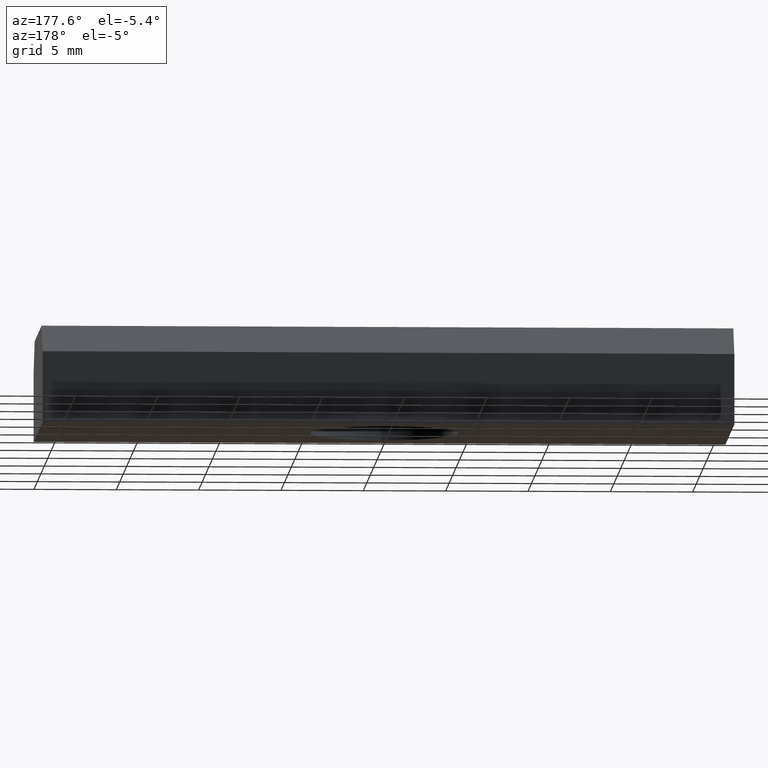
[diagram: clean part render]
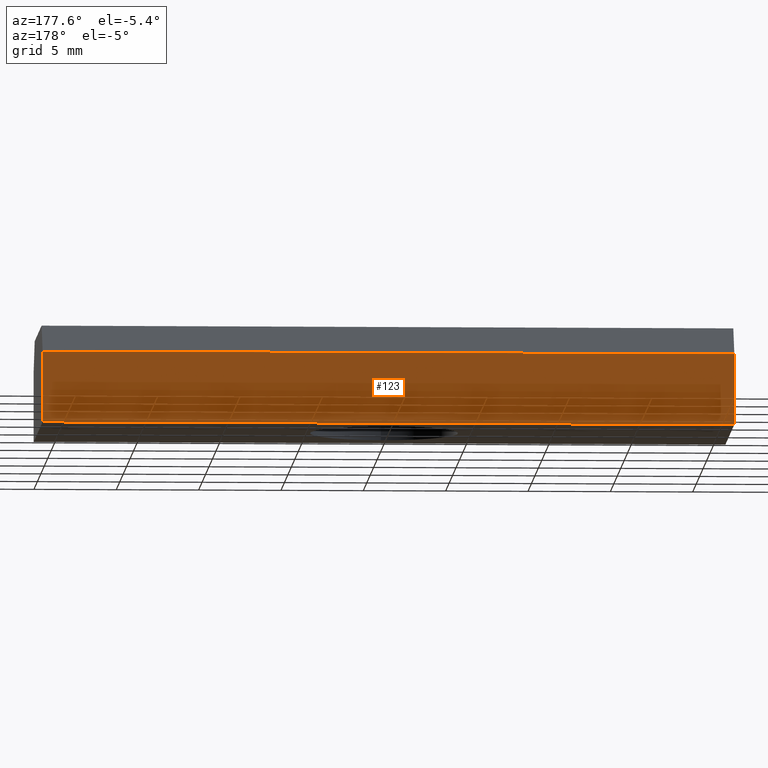
[diagram: same view with one face highlighted and labeled with its STEP entity id]
A machine part, auxiliary view. The second image highlights one B-rep face of the part: STEP entity #123.
In plain terms, the highlighted planar face has unit normal (0, 1, 0).
Its self-contained STEP definition (entity closure, byte-faithful):
#47=CARTESIAN_POINT('',(-21.000000000084128,6.499999999974079,-1.776357E-015));
#48=VERTEX_POINT('',#47);
#55=CARTESIAN_POINT('',(20.999999999915872,6.499999999974079,-1.776357E-015));
#56=VERTEX_POINT('',#55);
#57=CARTESIAN_POINT('',(-21.000000000084128,6.499999999974079,-1.776357E-015));
#58=DIRECTION('',(1.0,0.0,0.0));
#59=VECTOR('',#58,42.0);
#60=LINE('',#57,#59);
#61=EDGE_CURVE('',#48,#56,#60,.T.);
#93=CARTESIAN_POINT('',(-21.000000000084128,6.499999999974079,-1.776357E-015));
#94=DIRECTION('',(0.0,1.0,0.0));
#95=DIRECTION('',(0.0,0.0,1.0));
#96=AXIS2_PLACEMENT_3D('',#93,#94,#95);
#97=PLANE('',#96);
#98=CARTESIAN_POINT('',(-21.000000000084128,6.499999999974079,4.299999999982445));
#99=VERTEX_POINT('',#98);
#100=CARTESIAN_POINT('',(-21.000000000084128,6.499999999974079,-1.776357E-015));
#101=DIRECTION('',(0.0,0.0,1.0));
#102=VECTOR('',#101,4.299999999982811);
#103=LINE('',#100,#102);
#104=EDGE_CURVE('',#48,#99,#103,.T.);
#105=ORIENTED_EDGE('',*,*,#104,.T.);
#106=CARTESIAN_POINT('',(20.999999999915872,6.499999999974079,4.299999999982445));
#107=VERTEX_POINT('',#106);
#108=CARTESIAN_POINT('',(-21.000000000084128,6.499999999974079,4.299999999982445));
#109=DIRECTION('',(1.0,0.0,0.0));
#110=VECTOR('',#109,42.0);
#111=LINE('',#108,#110);
#112=EDGE_CURVE('',#99,#107,#111,.T.);
#113=ORIENTED_EDGE('',*,*,#112,.T.);
#114=CARTESIAN_POINT('',(20.999999999915872,6.499999999974079,-1.776357E-015));
#115=DIRECTION('',(0.0,0.0,1.0));
#116=VECTOR('',#115,4.299999999982811);
#117=LINE('',#114,#116);
#118=EDGE_CURVE('',#56,#107,#117,.T.);
#119=ORIENTED_EDGE('',*,*,#118,.F.);
#120=ORIENTED_EDGE('',*,*,#61,.F.);
#121=EDGE_LOOP('',(#105,#113,#119,#120));
#122=FACE_OUTER_BOUND('',#121,.T.);
#123=ADVANCED_FACE('',(#122),#97,.T.);